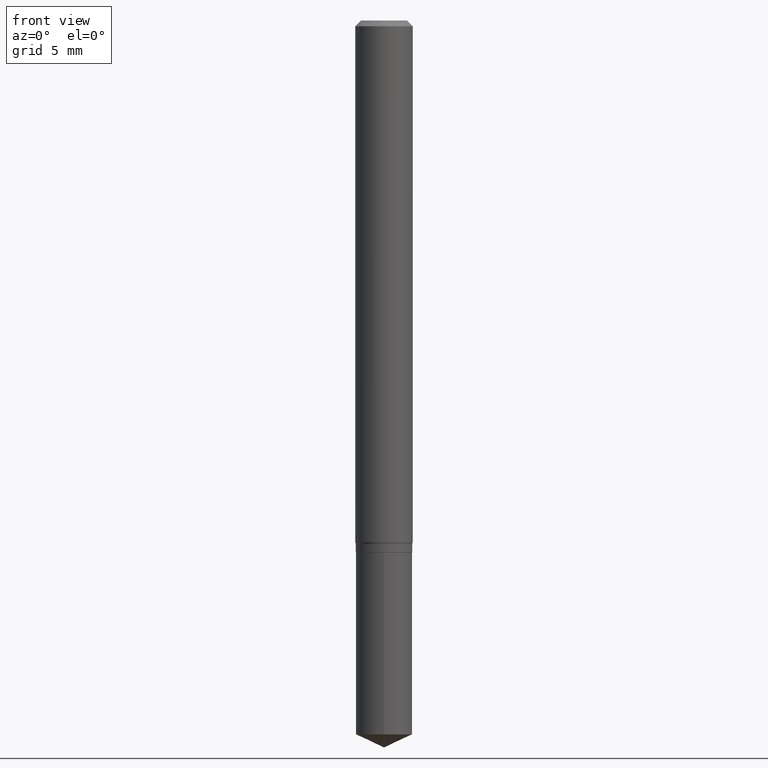
[diagram: clean part render]
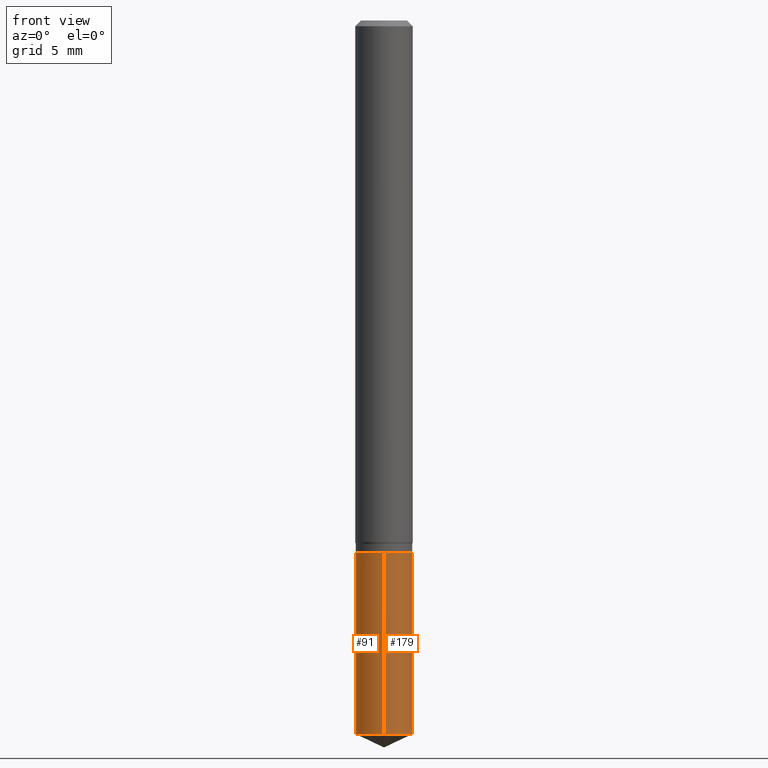
[diagram: same view with one multi-face feature highlighted, each face labeled with its STEP entity id]
A machine part, front view. The highlighted faces form ONE feature: a constant-radius fillet chain: 2 tangent blend faces with common blend radius 1.4745 mm. The faces share edges in the B-rep.
Their STEP definitions:
[1] entity #179 (Cylinder):
#4 = DIRECTION ( 'NONE',  ( -6.982962677686265922E-15, -1.000000000000000000, 4.706025828879006993E-15 ) ) ;
#6 = LINE ( 'NONE', #420, #355 ) ;
#9 = CARTESIAN_POINT ( 'NONE',  ( -4.053609834396517801E-16, -0.05805000000000513222, -1.469030840444102592 ) ) ;
#31 = VERTEX_POINT ( 'NONE', #186 ) ;
#38 = ORIENTED_EDGE ( 'NONE', *, *, #106, .F. ) ;
#44 = DIRECTION ( 'NONE',  ( -2.445358326776455510E-29, 3.491639551644474585E-15, 1.000000000000000000 ) ) ;
#53 = FACE_OUTER_BOUND ( 'NONE', #365, .T. ) ;
#56 = CARTESIAN_POINT ( 'NONE',  ( 3.592427717684202887E-29, -5.129153021169098548E-15, -1.469030840444102815 ) ) ;
#66 = EDGE_CURVE ( 'NONE', #455, #31, #223, .T. ) ;
#67 = DIRECTION ( 'NONE',  ( -2.445358326776455510E-29, 3.491639551644474585E-15, 1.000000000000000000 ) ) ;
#97 = CARTESIAN_POINT ( 'NONE',  ( 4.124700581087740328E-16, 0.05804999999999487653, -1.469030840444103037 ) ) ;
#106 = EDGE_CURVE ( 'NONE', #192, #455, #6, .T. ) ;
#116 = DIRECTION ( 'NONE',  ( -6.982962677686265922E-15, -1.000000000000000000, 2.353012914439503496E-15 ) ) ;
#127 = AXIS2_PLACEMENT_3D ( 'NONE', #181, #67, #431 ) ;
#150 = EDGE_CURVE ( 'NONE', #220, #31, #283, .T. ) ;
#161 = CARTESIAN_POINT ( 'NONE',  ( 2.676565608369631794E-29, -3.821426325363822773E-15, -1.094499999999999806 ) ) ;
#169 = AXIS2_PLACEMENT_3D ( 'NONE', #161, #44, #116 ) ;
#175 = CARTESIAN_POINT ( 'NONE',  ( 4.124700581087648130E-16, 0.05804999999999617410, -1.094500000000000028 ) ) ;
#179 = ADVANCED_FACE ( 'NONE', ( #53 ), #459, .T. ) ;
#181 = CARTESIAN_POINT ( 'NONE',  ( 2.676565608369631794E-29, -3.821426325363822773E-15, -1.094499999999999806 ) ) ;
#186 = CARTESIAN_POINT ( 'NONE',  ( 4.124700581087739835E-16, 0.05804999999999616023, -1.094500000000000028 ) ) ;
#192 = VERTEX_POINT ( 'NONE', #9 ) ;
#202 = CARTESIAN_POINT ( 'NONE',  ( -4.053609834396609506E-16, -0.05805000000000382077, -1.094499999999999806 ) ) ;
#210 = AXIS2_PLACEMENT_3D ( 'NONE', #56, #356, #4 ) ;
#220 = VERTEX_POINT ( 'NONE', #97 ) ;
#223 = CIRCLE ( 'NONE', #169, 0.05804999999999999744 ) ;
#266 = ORIENTED_EDGE ( 'NONE', *, *, #66, .F. ) ;
#280 = DIRECTION ( 'NONE',  ( -2.445358326776455790E-29, 3.491639551644474585E-15, 1.000000000000000000 ) ) ;
#283 = LINE ( 'NONE', #175, #337 ) ;
#334 = ORIENTED_EDGE ( 'NONE', *, *, #150, .T. ) ;
#337 = VECTOR ( 'NONE', #462, 39.37007874015748143 ) ;
#355 = VECTOR ( 'NONE', #280, 39.37007874015748143 ) ;
#356 = DIRECTION ( 'NONE',  ( -2.445358326776455510E-29, 3.491639551644474585E-15, 1.000000000000000000 ) ) ;
#365 = EDGE_LOOP ( 'NONE', ( #406, #334, #266, #38 ) ) ;
#406 = ORIENTED_EDGE ( 'NONE', *, *, #445, .T. ) ;
#420 = CARTESIAN_POINT ( 'NONE',  ( -4.053609834396609506E-16, -0.05805000000000382077, -1.094499999999999806 ) ) ;
#431 = DIRECTION ( 'NONE',  ( -6.982962677686265922E-15, -1.000000000000000000, 2.353012914439503496E-15 ) ) ;
#445 = EDGE_CURVE ( 'NONE', #192, #220, #485, .T. ) ;
#455 = VERTEX_POINT ( 'NONE', #202 ) ;
#459 = CYLINDRICAL_SURFACE ( 'NONE', #127, 0.05804999999999999744 ) ;
#462 = DIRECTION ( 'NONE',  ( -2.445358326776455790E-29, 3.491639551644474585E-15, 1.000000000000000000 ) ) ;
#485 = CIRCLE ( 'NONE', #210, 0.05804999999999999744 ) ;
[2] entity #91 (Cylinder):
#6 = LINE ( 'NONE', #420, #355 ) ;
#9 = CARTESIAN_POINT ( 'NONE',  ( -4.053609834396517801E-16, -0.05805000000000513222, -1.469030840444102592 ) ) ;
#11 = CARTESIAN_POINT ( 'NONE',  ( 2.676565608369631794E-29, -3.821426325363822773E-15, -1.094499999999999806 ) ) ;
#12 = AXIS2_PLACEMENT_3D ( 'NONE', #11, #317, #120 ) ;
#31 = VERTEX_POINT ( 'NONE', #186 ) ;
#85 = EDGE_CURVE ( 'NONE', #31, #455, #239, .T. ) ;
#91 = ADVANCED_FACE ( 'NONE', ( #323 ), #353, .T. ) ;
#97 = CARTESIAN_POINT ( 'NONE',  ( 4.124700581087740328E-16, 0.05804999999999487653, -1.469030840444103037 ) ) ;
#106 = EDGE_CURVE ( 'NONE', #192, #455, #6, .T. ) ;
#120 = DIRECTION ( 'NONE',  ( -6.982962677686265922E-15, -1.000000000000000000, 2.353012914439503496E-15 ) ) ;
#129 = CARTESIAN_POINT ( 'NONE',  ( 3.592427717684202887E-29, -5.129153021169098548E-15, -1.469030840444102815 ) ) ;
#150 = EDGE_CURVE ( 'NONE', #220, #31, #283, .T. ) ;
#175 = CARTESIAN_POINT ( 'NONE',  ( 4.124700581087648130E-16, 0.05804999999999617410, -1.094500000000000028 ) ) ;
#176 = ORIENTED_EDGE ( 'NONE', *, *, #150, .F. ) ;
#186 = CARTESIAN_POINT ( 'NONE',  ( 4.124700581087739835E-16, 0.05804999999999616023, -1.094500000000000028 ) ) ;
#192 = VERTEX_POINT ( 'NONE', #9 ) ;
#199 = EDGE_CURVE ( 'NONE', #220, #192, #302, .T. ) ;
#202 = CARTESIAN_POINT ( 'NONE',  ( -4.053609834396609506E-16, -0.05805000000000382077, -1.094499999999999806 ) ) ;
#207 = DIRECTION ( 'NONE',  ( -2.445358326776455510E-29, 3.491639551644474585E-15, 1.000000000000000000 ) ) ;
#212 = AXIS2_PLACEMENT_3D ( 'NONE', #129, #207, #281 ) ;
#220 = VERTEX_POINT ( 'NONE', #97 ) ;
#239 = CIRCLE ( 'NONE', #335, 0.05804999999999999744 ) ;
#243 = DIRECTION ( 'NONE',  ( -2.445358326776455510E-29, 3.491639551644474585E-15, 1.000000000000000000 ) ) ;
#271 = EDGE_LOOP ( 'NONE', ( #176, #411, #339, #371 ) ) ;
#280 = DIRECTION ( 'NONE',  ( -2.445358326776455790E-29, 3.491639551644474585E-15, 1.000000000000000000 ) ) ;
#281 = DIRECTION ( 'NONE',  ( -6.982962677686265922E-15, -1.000000000000000000, 4.706025828879006993E-15 ) ) ;
#283 = LINE ( 'NONE', #175, #337 ) ;
#302 = CIRCLE ( 'NONE', #212, 0.05804999999999999744 ) ;
#317 = DIRECTION ( 'NONE',  ( -2.445358326776455510E-29, 3.491639551644474585E-15, 1.000000000000000000 ) ) ;
#323 = FACE_OUTER_BOUND ( 'NONE', #271, .T. ) ;
#335 = AXIS2_PLACEMENT_3D ( 'NONE', #425, #243, #348 ) ;
#337 = VECTOR ( 'NONE', #462, 39.37007874015748143 ) ;
#339 = ORIENTED_EDGE ( 'NONE', *, *, #106, .T. ) ;
#348 = DIRECTION ( 'NONE',  ( -6.982962677686265922E-15, -1.000000000000000000, 2.353012914439503496E-15 ) ) ;
#353 = CYLINDRICAL_SURFACE ( 'NONE', #12, 0.05804999999999999744 ) ;
#355 = VECTOR ( 'NONE', #280, 39.37007874015748143 ) ;
#371 = ORIENTED_EDGE ( 'NONE', *, *, #85, .F. ) ;
#411 = ORIENTED_EDGE ( 'NONE', *, *, #199, .T. ) ;
#420 = CARTESIAN_POINT ( 'NONE',  ( -4.053609834396609506E-16, -0.05805000000000382077, -1.094499999999999806 ) ) ;
#425 = CARTESIAN_POINT ( 'NONE',  ( 2.676565608369631794E-29, -3.821426325363822773E-15, -1.094499999999999806 ) ) ;
#455 = VERTEX_POINT ( 'NONE', #202 ) ;
#462 = DIRECTION ( 'NONE',  ( -2.445358326776455790E-29, 3.491639551644474585E-15, 1.000000000000000000 ) ) ;